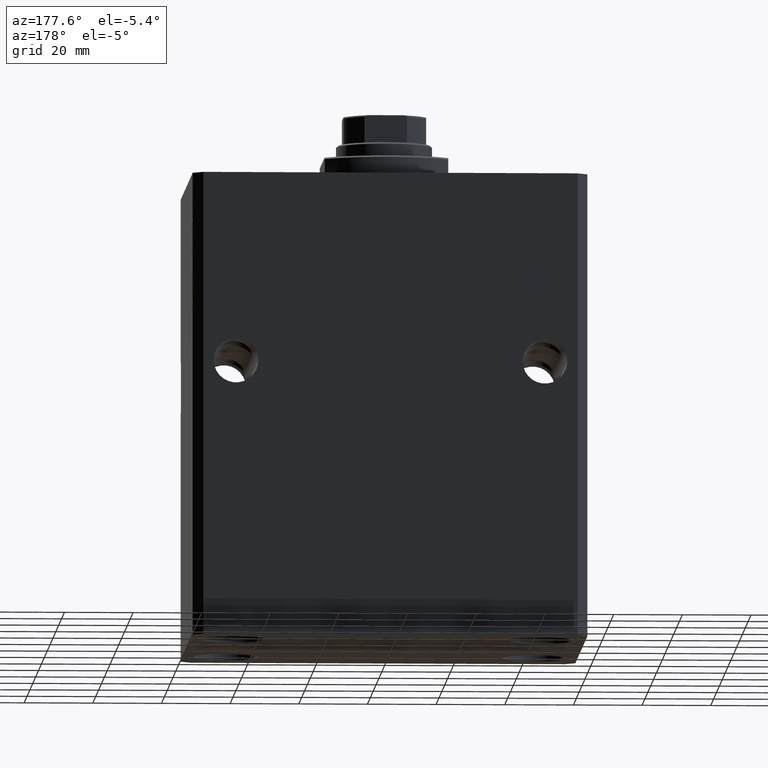
[diagram: clean part render]
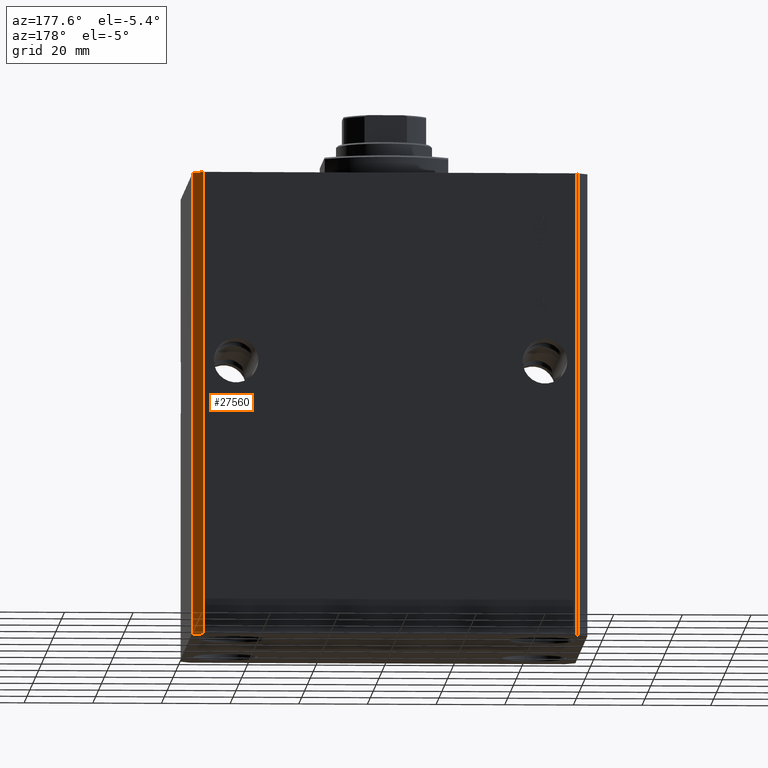
[diagram: same view with one face highlighted and labeled with its STEP entity id]
A machine part, auxiliary view. The second image highlights one B-rep face of the part: STEP entity #27560.
In plain terms, the highlighted planar face has unit normal (0.7071, 0.7071, 0).
Its self-contained STEP definition (entity closure, byte-faithful):
#458 = VECTOR ( 'NONE', #41340, 999.9999999999998863 ) ;
#963 = ORIENTED_EDGE ( 'NONE', *, *, #42635, .F. ) ;
#1231 = DIRECTION ( 'NONE',  ( 0.000000000000000000, 0.000000000000000000, 1.000000000000000000 ) ) ;
#4106 = EDGE_CURVE ( 'NONE', #20923, #43267, #30160, .T. ) ;
#4757 = CARTESIAN_POINT ( 'NONE',  ( 57.50000000000055422, 41.99999999999997868, -135.0000000000000000 ) ) ;
#6511 = CARTESIAN_POINT ( 'NONE',  ( 57.50000000000055422, 41.99999999999997868, 0.000000000000000000 ) ) ;
#7646 = ORIENTED_EDGE ( 'NONE', *, *, #44367, .T. ) ;
#8183 = CARTESIAN_POINT ( 'NONE',  ( 57.50000000000055422, 41.99999999999997868, -135.0000000000000000 ) ) ;
#9139 = DIRECTION ( 'NONE',  ( 0.000000000000000000, 0.000000000000000000, 1.000000000000000000 ) ) ;
#10409 = VERTEX_POINT ( 'NONE', #35092 ) ;
#12501 = DIRECTION ( 'NONE',  ( -0.7071067811865376918, 0.7071067811865574537, 0.000000000000000000 ) ) ;
#15429 = CARTESIAN_POINT ( 'NONE',  ( 54.50000000000058975, 45.00000000000002842, -135.0000000000000000 ) ) ;
#15704 = VECTOR ( 'NONE', #12501, 999.9999999999998863 ) ;
#16446 = CARTESIAN_POINT ( 'NONE',  ( 57.50000000000055422, 41.99999999999997868, -135.0000000000000000 ) ) ;
#20923 = VERTEX_POINT ( 'NONE', #45894 ) ;
#21966 = FACE_OUTER_BOUND ( 'NONE', #44199, .T. ) ;
#22884 = DIRECTION ( 'NONE',  ( 0.7071067811865573427, 0.7071067811865378028, -0.000000000000000000 ) ) ;
#22993 = EDGE_CURVE ( 'NONE', #20923, #10409, #25627, .T. ) ;
#23452 = VECTOR ( 'NONE', #1231, 1000.000000000000000 ) ;
#25627 = LINE ( 'NONE', #8183, #23452 ) ;
#25680 = PLANE ( 'NONE',  #39888 ) ;
#27560 = ADVANCED_FACE ( 'NONE', ( #21966 ), #25680, .T. ) ;
#30160 = LINE ( 'NONE', #16446, #15704 ) ;
#30511 = ORIENTED_EDGE ( 'NONE', *, *, #4106, .T. ) ;
#31596 = LINE ( 'NONE', #6511, #458 ) ;
#35092 = CARTESIAN_POINT ( 'NONE',  ( 57.50000000000055422, 41.99999999999997868, 0.000000000000000000 ) ) ;
#35357 = VECTOR ( 'NONE', #9139, 1000.000000000000000 ) ;
#37483 = ORIENTED_EDGE ( 'NONE', *, *, #22993, .F. ) ;
#38819 = CARTESIAN_POINT ( 'NONE',  ( 54.50000000000058975, 45.00000000000002842, 0.000000000000000000 ) ) ;
#39888 = AXIS2_PLACEMENT_3D ( 'NONE', #4757, #22884, #40284 ) ;
#39940 = VERTEX_POINT ( 'NONE', #38819 ) ;
#40284 = DIRECTION ( 'NONE',  ( -0.7071067811865378028, 0.7071067811865573427, 0.000000000000000000 ) ) ;
#41340 = DIRECTION ( 'NONE',  ( -0.7071067811865376918, 0.7071067811865574537, 0.000000000000000000 ) ) ;
#42097 = CARTESIAN_POINT ( 'NONE',  ( 54.50000000000058975, 45.00000000000002842, -135.0000000000000000 ) ) ;
#42635 = EDGE_CURVE ( 'NONE', #10409, #39940, #31596, .T. ) ;
#43267 = VERTEX_POINT ( 'NONE', #42097 ) ;
#43977 = LINE ( 'NONE', #15429, #35357 ) ;
#44199 = EDGE_LOOP ( 'NONE', ( #963, #37483, #30511, #7646 ) ) ;
#44367 = EDGE_CURVE ( 'NONE', #43267, #39940, #43977, .T. ) ;
#45894 = CARTESIAN_POINT ( 'NONE',  ( 57.50000000000055422, 41.99999999999997868, -135.0000000000000000 ) ) ;